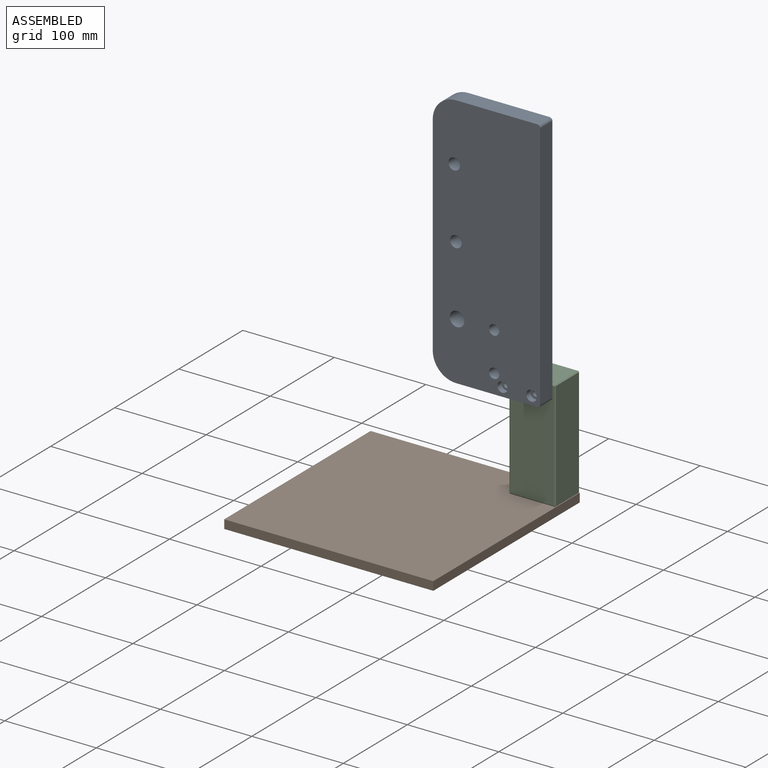
[diagram: assembled view]
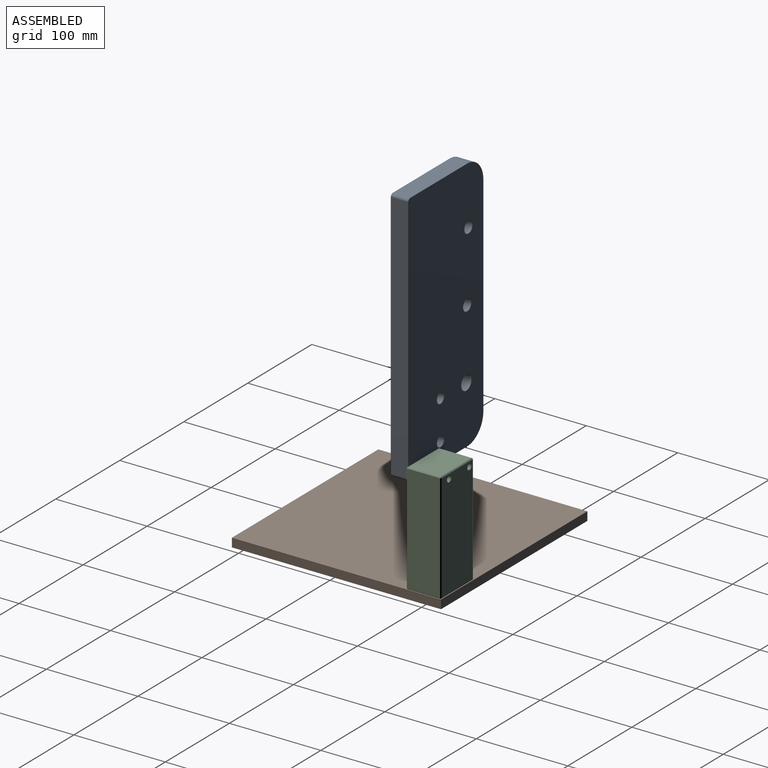
[diagram: assembled view, second angle]
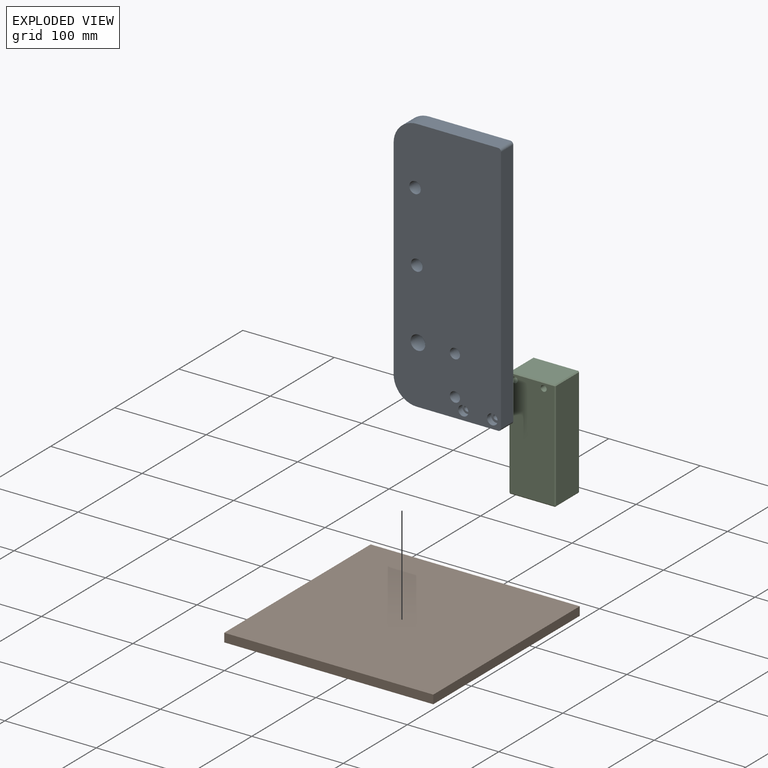
[diagram: exploded view]
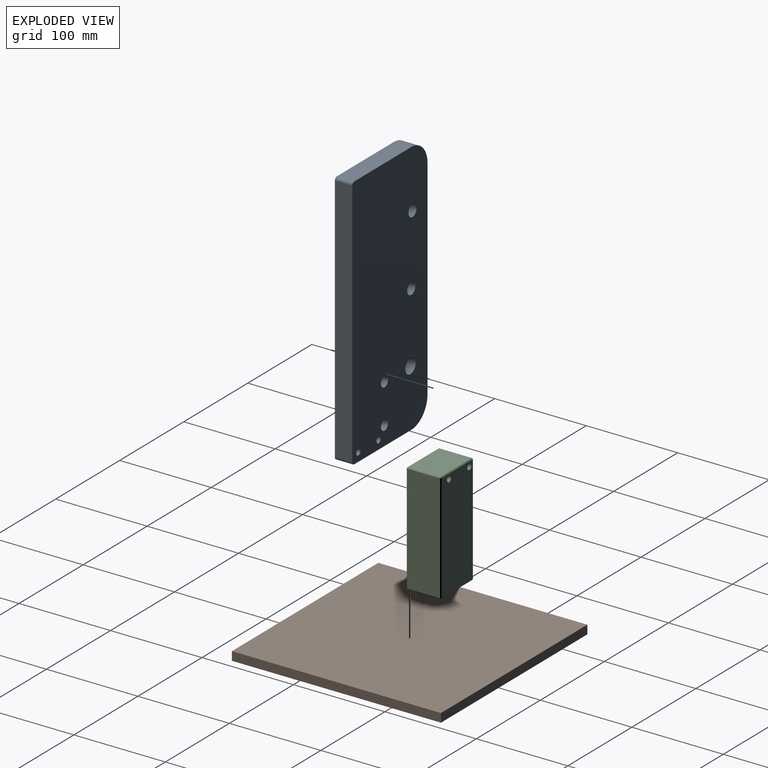
[diagram: exploded view, second angle]
ASSEMBLY  parts=3 mates=4
PART A: 21 faces, bbox 117.5x19.1x279.5 mm
  f0: cylinder r=3.26mm len=12.7mm, axis (0,1,0), area 260.4mm2, adj f12,f18
  f1: cylinder r=3.26mm len=12.7mm, axis (0,1,0), area 260.4mm2, adj f12,f20
  f2: plane 228.7x19.05mm, normal (-1,0,0), area 4356.8mm2, adj f11,f12,f13,f14
  f3: plane 88.9x19.05mm, normal (0,0,-1), area 1693.5mm2, adj f11,f12,f13,f15
  f4: plane 273.15x19.05mm, normal (1,0,0), area 5203.5mm2, adj f11,f12,f15,f16
  f5: cylinder r=5.56mm len=19.05mm, axis (0,1,0), area 665.1mm2, adj f11,f12
  f6: cylinder r=6.35mm len=19.05mm, axis (0,1,0), area 760.1mm2, adj f11,f12
  f7: cylinder r=6.35mm len=19.05mm, axis (0,1,0), area 760.1mm2, adj f11,f12
  f8: cylinder r=8mm len=19.05mm, axis (0,1,0), area 957.7mm2, adj f11,f12
  f9: plane 88.9x19.05mm, normal (0,0,1), area 1693.5mm2, adj f11,f12,f14,f16
  f10: cylinder r=5.56mm len=19.05mm, axis (0,1,0), area 665.1mm2, adj f11,f12
  f11: plane 279.5x117.48mm, normal (0,-1,0), area 31701.9mm2, adj f2,f3,f4,f5,f6,f7,f8,f9
  f12: plane 279.5x117.48mm, normal (0,1,0), area 31837.8mm2, adj f0,f1,f2,f3,f4,f5,f6,f7
  f13: cylinder r=25.4mm len=25.4mm, axis (0,-1,0), area 760.1mm2, adj f2,f3,f11,f12
  f14: cylinder r=25.4mm len=25.4mm, axis (0,1,0), area 760.1mm2, adj f2,f9,f11,f12
  f15: cylinder r=3.17mm len=19.05mm, axis (0,1,0), area 95mm2, adj f3,f4,f11,f12
  f16: cylinder r=3.17mm len=19.05mm, axis (0,-1,0), area 95mm2, adj f4,f9,f11,f12
  f17: cylinder r=5.56mm len=11.11mm, axis (0,-1,0), area 221.7mm2, adj f11,f18
  f18: plane 11.11x11.11mm, normal (0,-1,0), area 63.5mm2, adj f0,f17
  f19: cylinder r=5.81mm len=11.61mm, axis (0,-1,0), area 231.6mm2, adj f11,f20
  f20: plane 11.61x11.61mm, normal (0,-1,0), area 72.4mm2, adj f1,f19
PART B: 6 faces, bbox 228.6x228.6x9.5 mm
  f0: plane 228.6x9.53mm, normal (-1,0,0), area 2177.4mm2, adj f1,f3,f4,f5
  f1: plane 228.6x9.53mm, normal (0,-1,0), area 2177.4mm2, adj f0,f2,f4,f5
  f2: plane 228.6x9.53mm, normal (1,0,0), area 2177.4mm2, adj f1,f3,f4,f5
  f3: plane 228.6x9.53mm, normal (0,1,0), area 2177.4mm2, adj f0,f2,f4,f5
  f4: plane 228.6x228.6mm, normal (0,0,1), area 52258mm2, adj f0,f1,f2,f3
  f5: plane 228.6x228.6mm, normal (0,0,-1), area 52258mm2, adj f0,f1,f2,f3
PART C: 32 faces, bbox 50.8x38.1x120.7 mm
  f0: plane 118.62x36.07mm, normal (-1,0,0), area 4278.3mm2, adj f20,f25,f28,f31
  f1: plane 48.77x36.07mm, normal (0,0,-1), area 1718mm2, adj f8,f10,f15,f16,f25,f26
  f2: plane 118.62x36.07mm, normal (1,0,0), area 4278.3mm2, adj f12,f16,f17,f18
  f3: cylinder r=3.25mm len=38.1mm, axis (0,1,0), area 778.3mm2, adj f6,f7
  f4: plane 48.77x36.07mm, normal (0,0,1), area 1759mm2, adj f18,f19,f27,f28
  f5: cylinder r=3.25mm len=38.1mm, axis (0,1,0), area 778.3mm2, adj f6,f7
  f6: plane 118.62x48.77mm, normal (0,-1,0), area 5718.3mm2, adj f3,f5,f12,f15,f19,f20
  f7: plane 118.62x48.77mm, normal (0,1,0), area 5718.3mm2, adj f3,f5,f17,f26,f27,f31
  f8: cylinder r=2.55mm len=25.4mm, axis (0,0,-1), area 407.4mm2, adj f1,f9
  f9: plane 5.11x5.11mm, normal (0,0,-1), area 20.5mm2, adj f8
  f10: cylinder r=2.55mm len=25.4mm, axis (0,0,-1), area 407.4mm2, adj f1,f11
  f11: plane 5.11x5.11mm, normal (0,0,-1), area 20.5mm2, adj f10
  f12: plane 118.62x1.02mm, normal (0.71,-0.71,0), area 170.4mm2, adj f2,f6,f13,f14
  f13: plane 1.02x1.02mm, normal (0.58,-0.58,-0.58), area 0.9mm2, adj f12,f15,f16
  f14: plane 1.02x1.02mm, normal (0.58,-0.58,0.58), area 0.9mm2, adj f12,f18,f19
  f15: plane 48.77x1.02mm, normal (0,-0.71,-0.71), area 70.1mm2, adj f1,f6,f13,f21
  f16: plane 36.07x1.02mm, normal (0.71,0,-0.71), area 51.8mm2, adj f1,f2,f13,f22
  f17: plane 118.62x1.02mm, normal (0.71,0.71,0), area 170.4mm2, adj f2,f7,f22,f23
  f18: plane 36.07x1.02mm, normal (0.71,0,0.71), area 51.8mm2, adj f2,f4,f14,f23
  f19: plane 48.77x1.02mm, normal (0,-0.71,0.71), area 70.1mm2, adj f4,f6,f14,f24
  f20: plane 118.62x1.02mm, normal (-0.71,-0.71,0), area 170.4mm2, adj f0,f6,f21,f24
  f21: plane 1.02x1.02mm, normal (-0.58,-0.58,-0.58), area 0.9mm2, adj f15,f20,f25
  f22: plane 1.02x1.02mm, normal (0.58,0.58,-0.58), area 0.9mm2, adj f16,f17,f26
  f23: plane 1.02x1.02mm, normal (0.58,0.58,0.58), area 0.9mm2, adj f17,f18,f27
  f24: plane 1.02x1.02mm, normal (-0.58,-0.58,0.58), area 0.9mm2, adj f19,f20,f28
  f25: plane 36.07x1.02mm, normal (-0.71,0,-0.71), area 51.8mm2, adj f0,f1,f21,f29
  f26: plane 48.77x1.02mm, normal (0,0.71,-0.71), area 70.1mm2, adj f1,f7,f22,f29
  f27: plane 48.77x1.02mm, normal (0,0.71,0.71), area 70.1mm2, adj f4,f7,f23,f30
  f28: plane 36.07x1.02mm, normal (-0.71,0,0.71), area 51.8mm2, adj f0,f4,f24,f30
  f29: plane 1.02x1.02mm, normal (-0.58,0.58,-0.58), area 0.9mm2, adj f25,f26,f31
  f30: plane 1.02x1.02mm, normal (-0.58,0.58,0.58), area 0.9mm2, adj f27,f28,f31
  f31: plane 118.62x1.02mm, normal (-0.71,0.71,0), area 170.4mm2, adj f0,f7,f29,f30
PLACE A t=(-116.99,125.85,165.08)mm
PLACE B t=(-224.94,-64.65,50.78)mm
PLACE C t=(-47.14,163.95,60.3)mm
MATE planar A.f12 <-> C.f6  axis (0,1,0) through (-57.44,125.85,305.87)mm
MATE planar C.f7 <-> B.f3  axis (0,1,0) through (-21.7,163.95,120)mm
MATE slider A.f1 <-> C.f5  axis (0,1,0) through (-9.04,119.5,174.6)mm
MATE planar B.f2 <-> C.f2  axis (1,0,0) through (3.66,163.95,50.78)mm
